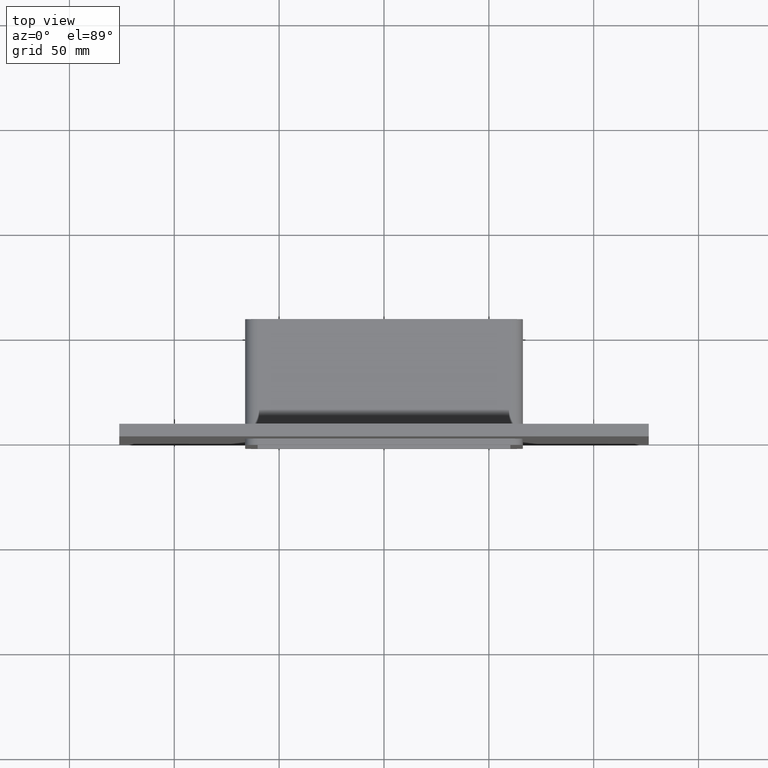
[diagram: clean part render]
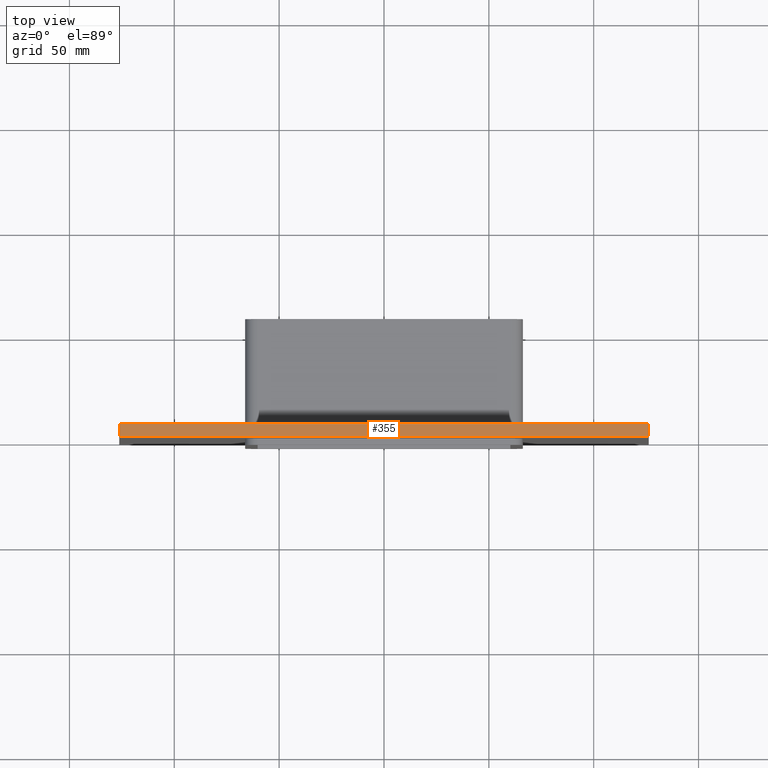
[diagram: same view with one face highlighted and labeled with its STEP entity id]
A machine part, top view. The second image highlights one B-rep face of the part: STEP entity #355.
In plain terms, the highlighted planar face has unit normal (0, 0, 1).
Its self-contained STEP definition (entity closure, byte-faithful):
#73=CARTESIAN_POINT('',(-126.25,6.000000000000001,116.5));
#74=VERTEX_POINT('',#73);
#75=CARTESIAN_POINT('',(126.25,6.000000000000001,116.5));
#76=VERTEX_POINT('',#75);
#77=CARTESIAN_POINT('',(-126.25,6.000000000000001,116.5));
#78=DIRECTION('',(1.0,0.0,0.0));
#79=VECTOR('',#78,252.5);
#80=LINE('',#77,#79);
#81=EDGE_CURVE('',#74,#76,#80,.T.);
#183=CARTESIAN_POINT('',(-126.25,0.0,116.5));
#184=VERTEX_POINT('',#183);
#185=CARTESIAN_POINT('',(126.24999999999999,0.0,116.5));
#186=VERTEX_POINT('',#185);
#187=CARTESIAN_POINT('',(-126.25,0.0,116.5));
#188=DIRECTION('',(1.0,0.0,0.0));
#189=VECTOR('',#188,252.5);
#190=LINE('',#187,#189);
#191=EDGE_CURVE('',#184,#186,#190,.T.);
#294=CARTESIAN_POINT('',(-126.25,0.0,116.5));
#295=DIRECTION('',(0.0,1.0,0.0));
#296=VECTOR('',#295,6.000000000000001);
#297=LINE('',#294,#296);
#298=EDGE_CURVE('',#184,#74,#297,.T.);
#335=CARTESIAN_POINT('',(126.24999999999999,0.0,116.5));
#336=DIRECTION('',(0.0,1.0,0.0));
#337=VECTOR('',#336,6.000000000000001);
#338=LINE('',#335,#337);
#339=EDGE_CURVE('',#186,#76,#338,.T.);
#344=CARTESIAN_POINT('',(-126.25,0.0,116.5));
#345=DIRECTION('',(0.0,0.0,1.0));
#346=DIRECTION('',(1.0,0.0,0.0));
#347=AXIS2_PLACEMENT_3D('',#344,#345,#346);
#348=PLANE('',#347);
#349=ORIENTED_EDGE('',*,*,#191,.T.);
#350=ORIENTED_EDGE('',*,*,#339,.T.);
#351=ORIENTED_EDGE('',*,*,#81,.F.);
#352=ORIENTED_EDGE('',*,*,#298,.F.);
#353=EDGE_LOOP('',(#349,#350,#351,#352));
#354=FACE_OUTER_BOUND('',#353,.T.);
#355=ADVANCED_FACE('',(#354),#348,.T.);